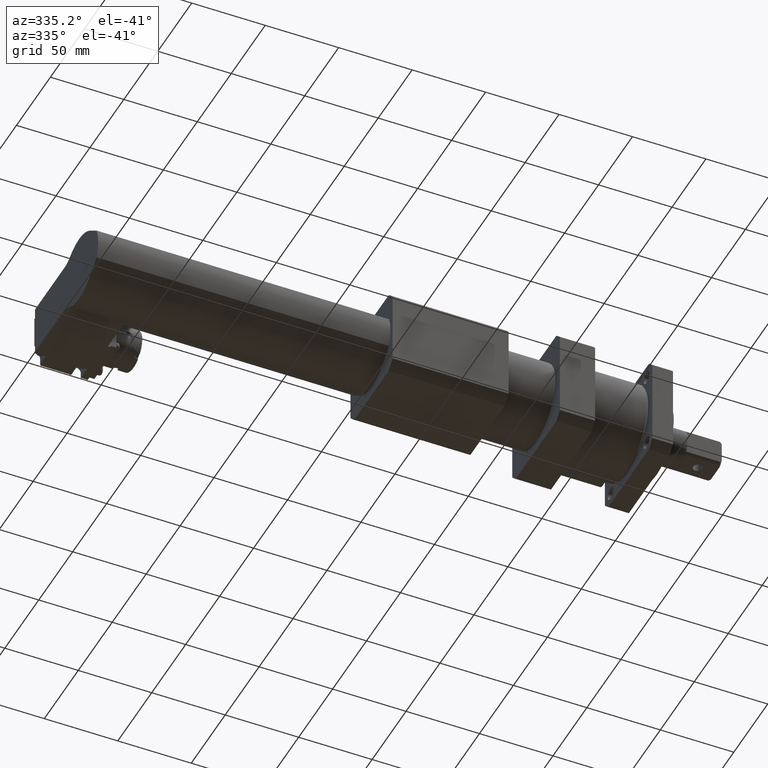
[diagram: clean part render]
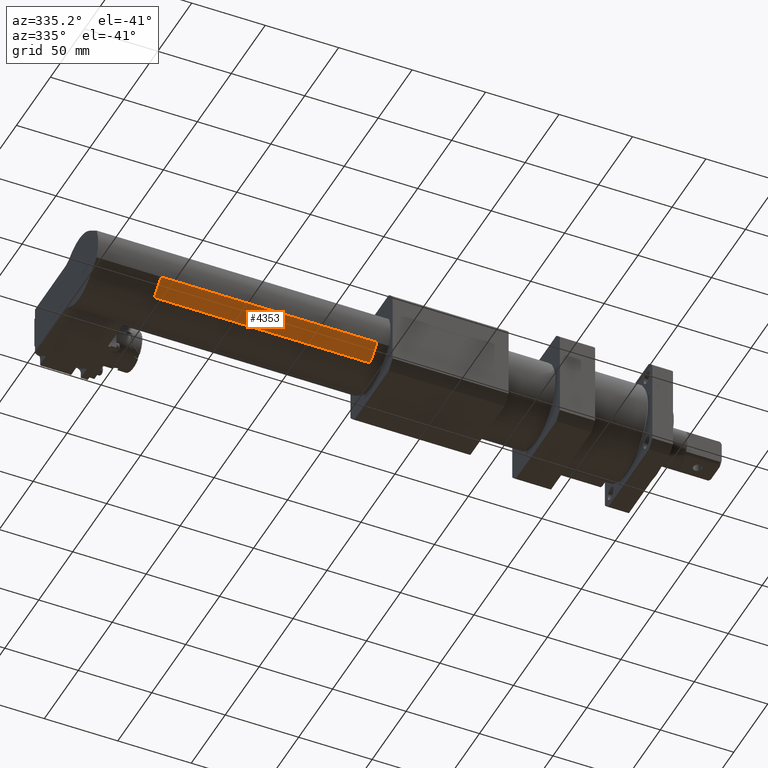
[diagram: same view with one face highlighted and labeled with its STEP entity id]
A machine part, auxiliary view. The second image highlights one B-rep face of the part: STEP entity #4353.
In plain terms, the highlighted planar face has unit normal (0, 0.6157, 0.788).
Its self-contained STEP definition (entity closure, byte-faithful):
#52 = CARTESIAN_POINT ( 'NONE',  ( -196.9999999999999700, -15.08370614547852600, -19.30626346336477900 ) ) ;
#84 = DIRECTION ( 'NONE',  ( 0.0000000000000000000, -0.7880107536067255700, 0.6156614753256536300 ) ) ;
#146 = LINE ( 'NONE', #8937, #3592 ) ;
#240 = VECTOR ( 'NONE', #8601, 1000.000000000000000 ) ;
#358 = ORIENTED_EDGE ( 'NONE', *, *, #3203, .F. ) ;
#437 = FACE_OUTER_BOUND ( 'NONE', #5567, .T. ) ;
#841 = LINE ( 'NONE', #52, #7824 ) ;
#1046 = ORIENTED_EDGE ( 'NONE', *, *, #8739, .T. ) ;
#1109 = ORIENTED_EDGE ( 'NONE', *, *, #2536, .F. ) ;
#1596 = EDGE_CURVE ( 'NONE', #5747, #7857, #146, .T. ) ;
#2066 = LINE ( 'NONE', #3677, #240 ) ;
#2102 = CARTESIAN_POINT ( 'NONE',  ( -196.9999999999999700, -25.76553998420773400, -10.96070022043267600 ) ) ;
#2303 = VECTOR ( 'NONE', #3113, 1000.000000000000000 ) ;
#2536 = EDGE_CURVE ( 'NONE', #3387, #3625, #4131, .T. ) ;
#3113 = DIRECTION ( 'NONE',  ( 1.000000000000000000, -0.0000000000000000000, -0.0000000000000000000 ) ) ;
#3203 = EDGE_CURVE ( 'NONE', #5747, #3387, #2066, .T. ) ;
#3387 = VERTEX_POINT ( 'NONE', #8807 ) ;
#3592 = VECTOR ( 'NONE', #4556, 1000.000000000000000 ) ;
#3625 = VERTEX_POINT ( 'NONE', #2102 ) ;
#3677 = CARTESIAN_POINT ( 'NONE',  ( -344.0000000000000000, -15.08370614547852600, -19.30626346336477900 ) ) ;
#4005 = AXIS2_PLACEMENT_3D ( 'NONE', #8449, #4232, #84 ) ;
#4131 = LINE ( 'NONE', #8041, #2303 ) ;
#4232 = DIRECTION ( 'NONE',  ( 0.0000000000000000000, 0.6156614753256536300, 0.7880107536067255700 ) ) ;
#4353 = ADVANCED_FACE ( 'NONE', ( #437 ), #7733, .F. ) ;
#4556 = DIRECTION ( 'NONE',  ( 1.000000000000000000, -0.0000000000000000000, -0.0000000000000000000 ) ) ;
#4654 = CARTESIAN_POINT ( 'NONE',  ( -196.9999999999999700, -15.08370614547852600, -19.30626346336477900 ) ) ;
#4673 = CARTESIAN_POINT ( 'NONE',  ( -344.0000000000000000, -15.08370614547852600, -19.30626346336477900 ) ) ;
#5567 = EDGE_LOOP ( 'NONE', ( #1046, #1109, #358, #7700 ) ) ;
#5747 = VERTEX_POINT ( 'NONE', #4673 ) ;
#7700 = ORIENTED_EDGE ( 'NONE', *, *, #1596, .T. ) ;
#7733 = PLANE ( 'NONE',  #4005 ) ;
#7824 = VECTOR ( 'NONE', #8995, 1000.000000000000000 ) ;
#7857 = VERTEX_POINT ( 'NONE', #4654 ) ;
#8041 = CARTESIAN_POINT ( 'NONE',  ( -344.0000000000000000, -25.76553998420773400, -10.96070022043267600 ) ) ;
#8449 = CARTESIAN_POINT ( 'NONE',  ( -344.0000000000000000, -15.08370614547852600, -19.30626346336477900 ) ) ;
#8601 = DIRECTION ( 'NONE',  ( 0.0000000000000000000, -0.7880107536067255700, 0.6156614753256536300 ) ) ;
#8739 = EDGE_CURVE ( 'NONE', #7857, #3625, #841, .T. ) ;
#8807 = CARTESIAN_POINT ( 'NONE',  ( -344.0000000000000000, -25.76553998420773400, -10.96070022043267600 ) ) ;
#8937 = CARTESIAN_POINT ( 'NONE',  ( -344.0000000000000000, -15.08370614547852600, -19.30626346336477900 ) ) ;
#8995 = DIRECTION ( 'NONE',  ( 0.0000000000000000000, -0.7880107536067255700, 0.6156614753256536300 ) ) ;